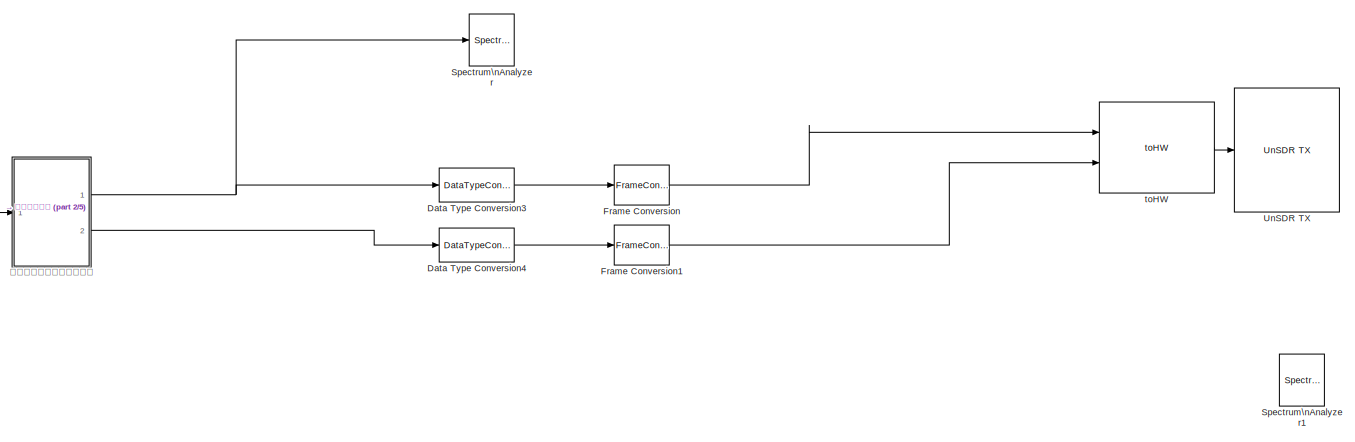
[diagram: root canvas - part 1/5, full width, top band]
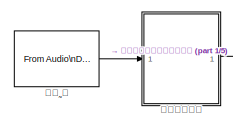
[diagram: root canvas - part 2/5, top left region]
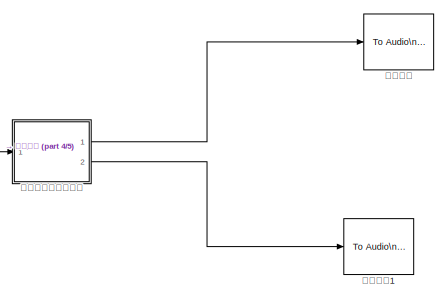
[diagram: root canvas - part 3/5, middle right region]
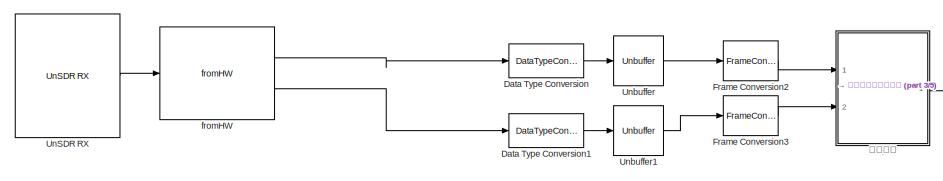
[diagram: root canvas - part 4/5, middle left region]
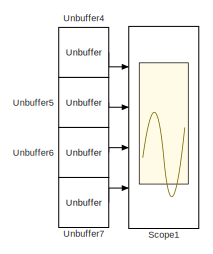
[diagram: root canvas - part 5/5, bottom left region]
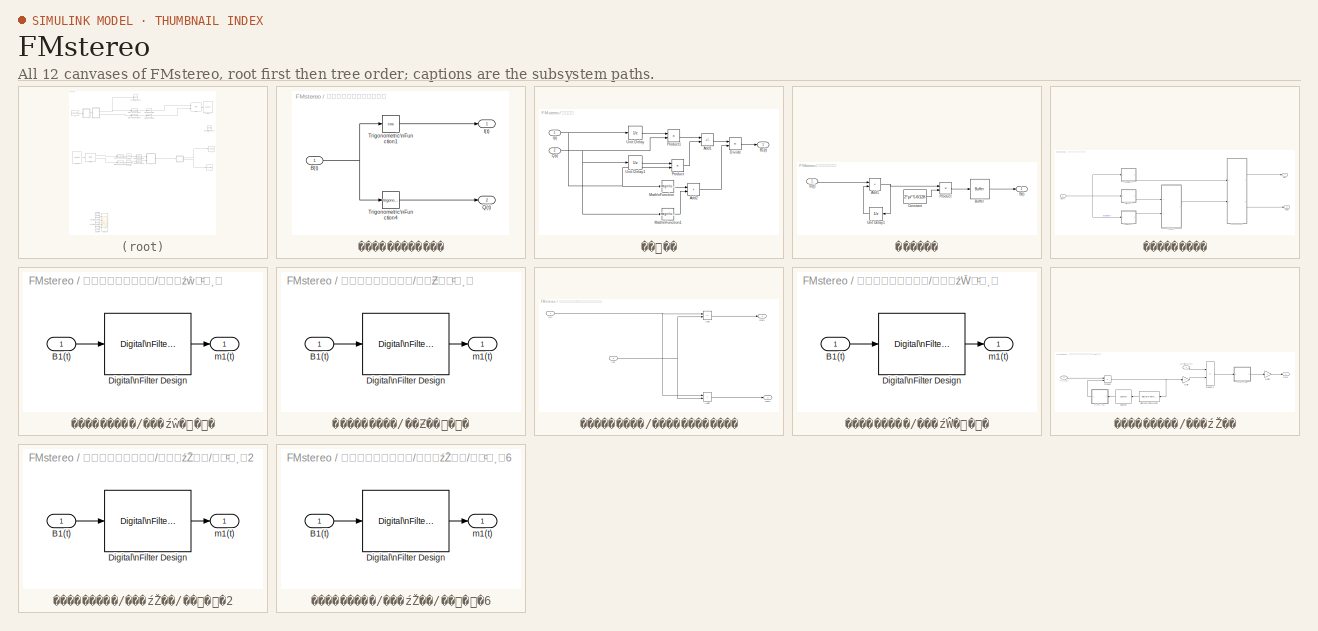
[diagram: thumbnail index - all 12 canvases of the model, root first then tree order]
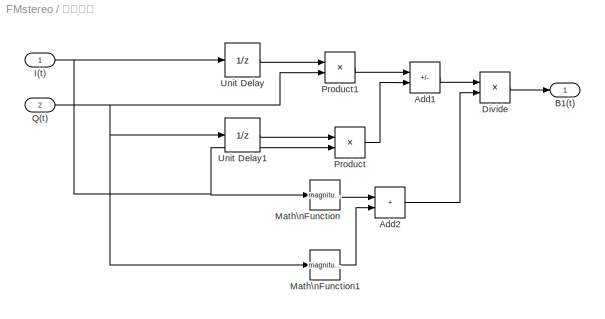
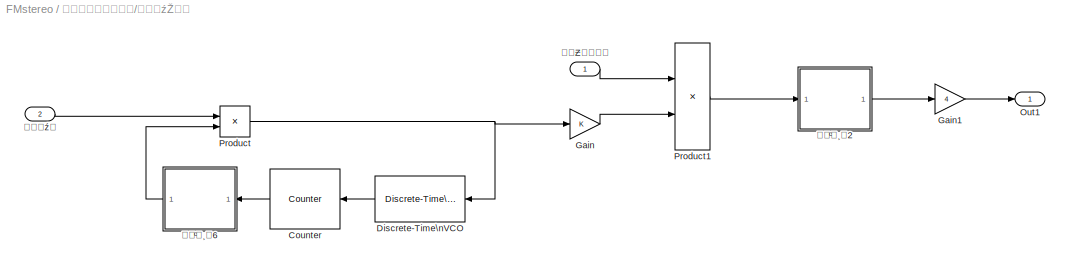
MODEL FMstereo
KIND model
CONFIG PreLoadFcn = setenv('MW_MINGW64_LOC','C:\\TDM-GCC-64')
CONFIG StartFcn = tic
CONFIG StopFcn = toc;
BLOCK [DataTypeConversion] Data Type Conversion
  OutDataTypeStr = double
  RndMeth = Floor
  SID = 1983
  SaturateOnIntegerOverflow = off
BLOCK [DataTypeConversion] Data Type Conversion1
  OutDataTypeStr = double
  RndMeth = Floor
  SID = 2200
  SaturateOnIntegerOverflow = off
BLOCK [DataTypeConversion] Data Type Conversion3
  Commented = on
  OutDataTypeStr = fixdt(1,12,11)
  RndMeth = Floor
  SID = 1974
  SaturateOnIntegerOverflow = off
BLOCK [DataTypeConversion] Data Type Conversion4
  Commented = on
  OutDataTypeStr = fixdt(1,12,11)
  RndMeth = Floor
  SID = 1975
  SaturateOnIntegerOverflow = off
BLOCK [FrameConversion] Frame Conversion
  Commented = on
  OutFrame = Sample-based
  Ports = [1, 1]
  SID = 1976
BLOCK [FrameConversion] Frame Conversion1
  Commented = on
  OutFrame = Sample-based
  Ports = [1, 1]
  SID = 1977
BLOCK [FrameConversion] Frame Conversion2
  OutFrame = Sample-based
  Ports = [1, 1]
  SID = 2202
BLOCK [FrameConversion] Frame Conversion3
  OutFrame = Sample-based
  Ports = [1, 1]
  SID = 2203
BLOCK [Scope] Scope1
  Commented = on
  Floating = off
  NumInputPorts = 4
  Ports = [4]
  SID = 1951
  ScopeSpecificationString = Simulink.scopes.TimeScopeBlockCfg('CurrentConfiguration', extmgr.ConfigurationSet(extmgr.Configuration('Core','General UI',true,'DisplayFullSourceName',true),extmgr.Configuration('Core','Source UI',true),extmgr.Configuration('Sources','WiredSimulink',true,'DataLoggingVariableName','ScopeData1'),extmgr.Configuration('Visuals','Time Domain',true,'SerializedDisplays',{struct('MinYLimReal','-18.375','...<+3487ch>
BLOCK [SpectrumAnalyzer] Spectrum\nAnalyzer
  Commented = on
  Ports = [1]
  SID = 1932
  ScopeSpecificationString = spbscopes.SpectrumAnalyzerBlockCfg('CurrentConfiguration', extmgr.ConfigurationSet(extmgr.Configuration('Core','General UI',true),extmgr.Configuration('Core','Source UI',true),extmgr.Configuration('Sources','WiredSimulink',true),extmgr.Configuration('Visuals','Spectrum',true,'AxesProperties',struct('Color',{[0 0 0],[0 0 0]},'XColor',{[0.686274509803922 0.686274509803922 0.686274509803922],[0.68627...<+1672ch>
BLOCK [SpectrumAnalyzer] Spectrum\nAnalyzer1
  Ports = [1]
  SID = 2211
  ScopeSpecificationString = spbscopes.SpectrumAnalyzerBlockCfg('CurrentConfiguration', extmgr.ConfigurationSet(extmgr.Configuration('Core','General UI',true),extmgr.Configuration('Core','Source UI',true),extmgr.Configuration('Sources','WiredSimulink',true),extmgr.Configuration('Visuals','Spectrum',true,'AxesProperties',struct('Color',{[0 0 0],[0 0 0]},'XColor',{[0.686274509803922 0.686274509803922 0.686274509803922],[0.68627...<+3563ch>
BLOCK [Reference] UnSDR RX  REF=UN_HIL_Lib/UnSDR RX
  AllowZeroVariantControls = off
  AutoFrameSizeCalculation = off
  GeneratePreprocessorConditionals = off
  Latency = 0
  Ports = [0, 1]
  PropagateVariantConditions = off
  RTWMemSecDataConstants = Inherit from model
  RTWMemSecDataInternal = Inherit from model
  RTWMemSecDataParameters = Inherit from model
  RTWMemSecFuncExecute = Inherit from model
  RTWMemSecFuncInitTerm = Inherit from model
  SID = 2208
  ShowPortLabels = FromPortIcon
  SourceBlock = UN_HIL_Lib/UnSDR RX
  SourceProductName = HIL Blockset
  SystemSampleTime = -1
BLOCK [Reference] UnSDR TX  REF=UN_HIL_Lib/UnSDR TX
  AllowZeroVariantControls = off
  AutoFrameSizeCalculation = off
  Commented = on
  GeneratePreprocessorConditionals = off
  Latency = 0
  Ports = [1]
  PropagateVariantConditions = off
  RTWMemSecDataConstants = Inherit from model
  RTWMemSecDataInternal = Inherit from model
  RTWMemSecDataParameters = Inherit from model
  RTWMemSecFuncExecute = Inherit from model
  RTWMemSecFuncInitTerm = Inherit from model
  SID = 2209
  ShowPortLabels = FromPortIcon
  SourceBlock = UN_HIL_Lib/UnSDR TX
  SourceProductName = HIL Blockset
  SystemSampleTime = -1
BLOCK [Unbuffer] Unbuffer
  Ports = [1, 1]
  SID = 2204
BLOCK [Unbuffer] Unbuffer1
  Ports = [1, 1]
  SID = 2205
BLOCK [Unbuffer] Unbuffer4
  Commented = on
  Ports = [1, 1]
  SID = 1952
BLOCK [Unbuffer] Unbuffer5
  Commented = on
  Ports = [1, 1]
  SID = 1953
BLOCK [Unbuffer] Unbuffer6
  Commented = on
  Ports = [1, 1]
  SID = 1954
BLOCK [Unbuffer] Unbuffer7
  Commented = on
  Ports = [1, 1]
  SID = 1955
BLOCK [Reference] fromHW  REF=UN_HIL_Lib/fromHW
  Ports = [1, 2]
  RTWMemSecDataConstants = Inherit from model
  RTWMemSecDataInternal = Inherit from model
  RTWMemSecDataParameters = Inherit from model
  RTWMemSecFuncExecute = Inherit from model
  RTWMemSecFuncInitTerm = Inherit from model
  SID = 2207
  SourceBlock = UN_HIL_Lib/fromHW
  SourceProductName = HIL Blockset
  sp = 1/128e3
BLOCK [Reference] toHW  REF=UN_HIL_Lib/toHW
  AllowZeroVariantControls = off
  AutoFrameSizeCalculation = off
  Commented = on
  GeneratePreprocessorConditionals = off
  Latency = 0
  Ports = [2, 1]
  PropagateVariantConditions = off
  RTWMemSecDataConstants = Inherit from model
  RTWMemSecDataInternal = Inherit from model
  RTWMemSecDataParameters = Inherit from model
  RTWMemSecFuncExecute = Inherit from model
  RTWMemSecFuncInitTerm = Inherit from model
  SID = 2206
  ShowPortLabels = FromPortIcon
  SourceBlock = UN_HIL_Lib/toHW
  SourceProductName = HIL Blockset
  SystemSampleTime = -1
BLOCK [SubSystem] 差分解调
  Ports = [2, 1]
  RequestExecContextInheritance = off
  SID = 2185
BLOCK [Sum] 差分解调/Add1
  IconShape = rectangular
  Inputs = -+
  Ports = [2, 1]
  SID = 2188
BLOCK [Sum] 差分解调/Add2
  IconShape = rectangular
  Ports = [2, 1]
  SID = 2189
BLOCK [Outport] 差分解调/B1(t)
  SID = 2197
  VectorParamsAs1DForOutWhenUnconnected = off
BLOCK [Product] 差分解调/Divide
  Inputs = */
  Ports = [2, 1]
  SID = 2190
BLOCK [Inport] 差分解调/I(t)
  SID = 2186
BLOCK [Math] 差分解调/Math\nFunction
  Operator = magnitude^2
  Ports = [1, 1]
  SID = 2191
  SignedPower = on
BLOCK [Math] 差分解调/Math\nFunction1
  Operator = magnitude^2
  Ports = [1, 1]
  SID = 2192
  SignedPower = on
BLOCK [Product] 差分解调/Product
  Ports = [2, 1]
  RndMeth = Zero
  SID = 2193
BLOCK [Product] 差分解调/Product1
  Ports = [2, 1]
  RndMeth = Zero
  SID = 2194
BLOCK [Inport] 差分解调/Q(t)
  Port = 2
  SID = 2187
BLOCK [UnitDelay] 差分解调/Unit Delay
  HasFrameUpgradeWarning = on
  SID = 2195
  SampleTime = -1
BLOCK [UnitDelay] 差分解调/Unit Delay1
  HasFrameUpgradeWarning = on
  SID = 2196
  SampleTime = -1
BLOCK [SubSystem] 产生正交分量
  Commented = on
  Ports = [1, 2]
  RequestExecContextInheritance = off
  SID = 2165
BLOCK [Inport] 产生正交分量/B(t)
  SID = 2166
BLOCK [Outport] 产生正交分量/I(t)
  SID = 2169
  VectorParamsAs1DForOutWhenUnconnected = off
BLOCK [Outport] 产生正交分量/Q(t)
  Port = 2
  SID = 2170
  VectorParamsAs1DForOutWhenUnconnected = off
BLOCK [Trigonometry] 产生正交分量/Trigonometric\nFunction1
  NumberOfIterations = 16
  Operator = cos
  Ports = [1, 1]
  SID = 2167
BLOCK [Trigonometry] 产生正交分量/Trigonometric\nFunction4
  NumberOfIterations = 16
  Ports = [1, 1]
  SID = 2168
BLOCK [Reference] 耳机  REF=dspobslib/To Audio\nDevice
  MultiThreadCoSim = auto
  Ports = [1]
  SID = 2198
  SourceBlock = dspobslib/To Audio\nDevice
  SourceProductBaseCode = DS
  SourceType = To Audio Device
  autoBufferSize = on
  bufferSize = 4096
  defaultOutputChannelMapping = on
  deviceDatatype = Determine from input data type
  deviceName = Default
  inheritSampleRate = on
  outputChannelMapping = 1:2
  outputNumUnderrunSamples = off
  queueDuration = 2
  sampleRate = 44100
BLOCK [Reference] 耳机1  REF=dspobslib/To Audio\nDevice
  MultiThreadCoSim = auto
  Ports = [1]
  SID = 2229
  SourceBlock = dspobslib/To Audio\nDevice
  SourceProductBaseCode = DS
  SourceType = To Audio Device
  autoBufferSize = on
  bufferSize = 4096
  defaultOutputChannelMapping = on
  deviceDatatype = Determine from input data type
  deviceName = Default
  inheritSampleRate = on
  outputChannelMapping = 1:2
  outputNumUnderrunSamples = off
  queueDuration = 2
  sampleRate = 44100
BLOCK [SubSystem] 积分器
  Commented = on
  Ports = [1, 1]
  RequestExecContextInheritance = off
  SID = 2171
BLOCK [Sum] 积分器/Add1
  IconShape = rectangular
  OutDataTypeStr = Inherit: Same as first input
  Ports = [2, 1]
  SID = 2173
BLOCK [Outport] 积分器/B(t)
  SID = 2179
  VectorParamsAs1DForOutWhenUnconnected = off
BLOCK [Buffer] 积分器/Buffer
  N = 4096
  SID = 2174
BLOCK [Constant] 积分器/Constant
  SID = 2175
  SampleTime = -1
  Value = 2*pi*5.6/128
  VectorParams1D = off
BLOCK [Product] 积分器/Product
  OutDataTypeStr = Inherit: Same as first input
  Ports = [2, 1]
  RndMeth = Zero
  SID = 2176
BLOCK [UnitDelay] 积分器/Unit Delay1
  HasFrameUpgradeWarning = on
  SID = 2178
  SampleTime = -1
BLOCK [Inport] 积分器/m(t)
  SID = 2172
BLOCK [SubSystem] 立体声解调
  Ports = [1, 2]
  RequestExecContextInheritance = off
  SID = 2231
BLOCK [Inport] 立体声解调/B1(t)
  SID = 2232
BLOCK [Outport] 立体声解调/left
  SID = 2233
BLOCK [Outport] 立体声解调/right
  Port = 2
  SID = 2234
BLOCK [SubSystem] 立体声解调/差信号带通滤波
  Ports = [1, 1]
  RequestExecContextInheritance = off
  SID = 2181
BLOCK [Inport] 立体声解调/差信号带通滤波/B1(t)
  SID = 2182
BLOCK [Reference] 立体声解调/差信号带通滤波/Digital\nFilter Design  REF=dsparch4/Digital\nFilter Design
  Ports = [1, 1]
  RTWMemSecDataConstants = Inherit from model
  RTWMemSecDataInternal = Inherit from model
  RTWMemSecDataParameters = Inherit from model
  RTWMemSecFuncExecute = Inherit from model
  RTWMemSecFuncInitTerm = Inherit from model
  SID = 2210
  SourceBlock = dsparch4/Digital\nFilter Design
  SourceProductBaseCode = DS
  SourceType = Digital Filter Design
  UserData = DataTag2
  UserDataPersistent = on
  mwdsp_browser_bugfix_var = off
BLOCK [Outport] 立体声解调/差信号带通滤波/m1(t)
  SID = 2184
  VectorParamsAs1DForOutWhenUnconnected = off
BLOCK [SubSystem] 立体声解调/差信号解调
  Ports = [2, 1]
  RequestExecContextInheritance = off
  SID = 2250
BLOCK [Reference] 立体声解调/差信号解调/Counter  REF=dspswit3/Counter
  CntDtype = double
  CountEvent = Rising edge
  CounterSize = 8 bits
  Direction = Up
  HitDtype = Logical
  HitValue = 32
  InitialCount = 0
  MaxCount = 255
  MultiThreadCoSim = auto
  NameLocation = top
  Output = Count
  Ports = [1, 1]
  ResetInput = off
  SID = 2240
  SamplesPerFrame = 1
  SourceBlock = dspswit3/Counter
  SourceProductBaseCode = DS
  SourceType = Counter
  Ts = 1
BLOCK [Reference] 立体声解调/差信号解调/Discrete-Time\nVCO  REF=commsynccomp2/Discrete-Time\nVCO
  Ac = 1
  Fc = 10
  Kc = 1
  NameLocation = top
  Ph = 0
  Ports = [1, 1]
  RTWMemSecDataConstants = Inherit from model
  RTWMemSecDataInternal = Inherit from model
  RTWMemSecDataParameters = Inherit from model
  RTWMemSecFuncExecute = Inherit from model
  RTWMemSecFuncInitTerm = Inherit from model
  SID = 2241
  SourceBlock = commsynccomp2/Discrete-Time\nVCO
  SourceProductBaseCode = CM
  SourceType = Discrete-Time VCO
  ts = 0.01
BLOCK [Gain] 立体声解调/差信号解调/Gain
  SID = 2243
BLOCK [Gain] 立体声解调/差信号解调/Gain1
  Gain = 4
  SID = 2249
BLOCK [Outport] 立体声解调/差信号解调/Out1
  SID = 2253
BLOCK [Product] 立体声解调/差信号解调/Product
  Ports = [2, 1]
  SID = 2235
BLOCK [Product] 立体声解调/差信号解调/Product1
  Ports = [2, 1]
  SID = 2244
BLOCK [Inport] 立体声解调/差信号解调/²îÐÅºÅ
  Port = 2
  SID = 2252
BLOCK [Inport] 立体声解调/差信号解调/导频控制
  SID = 2251
BLOCK [SubSystem] 立体声解调/差信号解调/低通滤波2
  Ports = [1, 1]
  RequestExecContextInheritance = off
  SID = 2245
BLOCK [Inport] 立体声解调/差信号解调/低通滤波2/B1(t)
  SID = 2246
BLOCK [Reference] 立体声解调/差信号解调/低通滤波2/Digital\nFilter Design  REF=dsparch4/Digital\nFilter Design
  Ports = [1, 1]
  RTWMemSecDataConstants = Inherit from model
  RTWMemSecDataInternal = Inherit from model
  RTWMemSecDataParameters = Inherit from model
  RTWMemSecFuncExecute = Inherit from model
  RTWMemSecFuncInitTerm = Inherit from model
  SID = 2247
  SourceBlock = dsparch4/Digital\nFilter Design
  SourceProductBaseCode = DS
  SourceType = Digital Filter Design
  UserData = DataTag3
  UserDataPersistent = on
  mwdsp_browser_bugfix_var = off
BLOCK [Outport] 立体声解调/差信号解调/低通滤波2/m1(t)
  SID = 2248
  VectorParamsAs1DForOutWhenUnconnected = off
BLOCK [SubSystem] 立体声解调/差信号解调/低通滤波6
  NameLocation = top
  Ports = [1, 1]
  RequestExecContextInheritance = off
  SID = 2236
BLOCK [Inport] 立体声解调/差信号解调/低通滤波6/B1(t)
  SID = 2237
BLOCK [Reference] 立体声解调/差信号解调/低通滤波6/Digital\nFilter Design  REF=dsparch4/Digital\nFilter Design
  Ports = [1, 1]
  RTWMemSecDataConstants = Inherit from model
  RTWMemSecDataInternal = Inherit from model
  RTWMemSecDataParameters = Inherit from model
  RTWMemSecFuncExecute = Inherit from model
  RTWMemSecFuncInitTerm = Inherit from model
  SID = 2238
  SourceBlock = dsparch4/Digital\nFilter Design
  SourceProductBaseCode = DS
  SourceType = Digital Filter Design
  UserData = DataTag4
  UserDataPersistent = on
  mwdsp_browser_bugfix_var = off
BLOCK [Outport] 立体声解调/差信号解调/低通滤波6/m1(t)
  SID = 2239
  VectorParamsAs1DForOutWhenUnconnected = off
BLOCK [SubSystem] 立体声解调/导频带通滤波
  Ports = [1, 1]
  RequestExecContextInheritance = off
  SID = 2216
BLOCK [Inport] 立体声解调/导频带通滤波/B1(t)
  SID = 2217
BLOCK [Reference] 立体声解调/导频带通滤波/Digital\nFilter Design  REF=dsparch4/Digital\nFilter Design
  Ports = [1, 1]
  RTWMemSecDataConstants = Inherit from model
  RTWMemSecDataInternal = Inherit from model
  RTWMemSecDataParameters = Inherit from model
  RTWMemSecFuncExecute = Inherit from model
  RTWMemSecFuncInitTerm = Inherit from model
  SID = 2218
  SourceBlock = dsparch4/Digital\nFilter Design
  SourceProductBaseCode = DS
  SourceType = Digital Filter Design
  UserData = DataTag1
  UserDataPersistent = on
  mwdsp_browser_bugfix_var = off
BLOCK [Outport] 立体声解调/导频带通滤波/m1(t)
  SID = 2219
  VectorParamsAs1DForOutWhenUnconnected = off
BLOCK [SubSystem] 立体声解调/和信号低通滤波
  Ports = [1, 1]
  RequestExecContextInheritance = off
  SID = 2212
BLOCK [Inport] 立体声解调/和信号低通滤波/B1(t)
  SID = 2213
BLOCK [Reference] 立体声解调/和信号低通滤波/Digital\nFilter Design  REF=dsparch4/Digital\nFilter Design
  Ports = [1, 1]
  RTWMemSecDataConstants = Inherit from model
  RTWMemSecDataInternal = Inherit from model
  RTWMemSecDataParameters = Inherit from model
  RTWMemSecFuncExecute = Inherit from model
  RTWMemSecFuncInitTerm = Inherit from model
  SID = 2214
  SourceBlock = dsparch4/Digital\nFilter Design
  SourceProductBaseCode = DS
  SourceType = Digital Filter Design
  UserData = DataTag0
  UserDataPersistent = on
  mwdsp_browser_bugfix_var = off
BLOCK [Outport] 立体声解调/和信号低通滤波/m1(t)
  SID = 2215
  VectorParamsAs1DForOutWhenUnconnected = off
BLOCK [SubSystem] 立体声解调/左右声道分离
  Ports = [2, 2]
  RequestExecContextInheritance = off
  SID = 2254
BLOCK [Sum] 立体声解调/左右声道分离/Add
  IconShape = rectangular
  Inputs = +-
  Ports = [2, 1]
  SID = 2228
BLOCK [Sum] 立体声解调/左右声道分离/Add1
  IconShape = rectangular
  Ports = [2, 1]
  SID = 2230
BLOCK [Inport] 立体声解调/左右声道分离/In1
  SID = 2255
BLOCK [Inport] 立体声解调/左右声道分离/In2
  Port = 2
  SID = 2256
BLOCK [Outport] 立体声解调/左右声道分离/Out1
  SID = 2257
BLOCK [Outport] 立体声解调/左右声道分离/Out2
  Port = 2
  SID = 2258
BLOCK [Reference] 麦克风  REF=dspobslib/From Audio\nDevice
  Commented = on
  MultiThreadCoSim = auto
  OutputFrames = on
  Ports = [0, 1]
  SID = 2180
  SourceBlock = dspobslib/From Audio\nDevice
  SourceProductBaseCode = DS
  SourceType = From Audio Device
  autoBufferSize = on
  bufferSize = 4096
  defaultInputChannelMapping = on
  deviceDatatype = Determine from output data type
  deviceName = Default
  frameSize = 1
  inputChannelMapping = 1:2
  numChannels = 1
  outputDatatype = single
  outputNumOverrunSamples = off
  queueDuration = 1.0
  sampleRate = 128000
LINE Data Type Conversion1:1 -> Unbuffer1:1
LINE Data Type Conversion3:1 -> Frame Conversion:1
LINE Data Type Conversion4:1 -> Frame Conversion1:1
LINE Data Type Conversion:1 -> Unbuffer:1
LINE Frame Conversion1:1 -> toHW:2
LINE Frame Conversion2:1 -> 差分解调:1
LINE Frame Conversion3:1 -> 差分解调:2
LINE Frame Conversion:1 -> toHW:1
LINE UnSDR RX:1 -> fromHW:1
LINE Unbuffer1:1 -> Frame Conversion3:1
LINE Unbuffer4:1 -> Scope1:1
LINE Unbuffer5:1 -> Scope1:2
LINE Unbuffer6:1 -> Scope1:3
LINE Unbuffer7:1 -> Scope1:4
LINE Unbuffer:1 -> Frame Conversion2:1
LINE fromHW:1 -> Data Type Conversion:1
LINE fromHW:2 -> Data Type Conversion1:1
LINE toHW:1 -> UnSDR TX:1
LINE 差分解调/Add1:1 -> 差分解调/Divide:1
LINE 差分解调/Add2:1 -> 差分解调/Divide:2
LINE 差分解调/Divide:1 -> 差分解调/B1(t):1
NET 差分解调/I(t):1 -> 差分解调/Math\nFunction:1, 差分解调/Product:2, 差分解调/Unit Delay:1
LINE 差分解调/Math\nFunction1:1 -> 差分解调/Add2:2
LINE 差分解调/Math\nFunction:1 -> 差分解调/Add2:1
LINE 差分解调/Product1:1 -> 差分解调/Add1:1
LINE 差分解调/Product:1 -> 差分解调/Add1:2
NET 差分解调/Q(t):1 -> 差分解调/Math\nFunction1:1, 差分解调/Product1:2, 差分解调/Unit Delay1:1
LINE 差分解调/Unit Delay1:1 -> 差分解调/Product:1
LINE 差分解调/Unit Delay:1 -> 差分解调/Product1:1
LINE 差分解调:1 -> 立体声解调:1
NET 产生正交分量/B(t):1 -> 产生正交分量/Trigonometric\nFunction1:1, 产生正交分量/Trigonometric\nFunction4:1
LINE 产生正交分量/Trigonometric\nFunction1:1 -> 产生正交分量/I(t):1
LINE 产生正交分量/Trigonometric\nFunction4:1 -> 产生正交分量/Q(t):1
NET 产生正交分量:1 -> Data Type Conversion3:1, Spectrum\nAnalyzer:1
LINE 产生正交分量:2 -> Data Type Conversion4:1
NET 积分器/Add1:1 -> 积分器/Product:1, 积分器/Unit Delay1:1
LINE 积分器/Buffer:1 -> 积分器/B(t):1
LINE 积分器/Constant:1 -> 积分器/Product:2
LINE 积分器/Product:1 -> 积分器/Buffer:1
LINE 积分器/Unit Delay1:1 -> 积分器/Add1:2
LINE 积分器/m(t):1 -> 积分器/Add1:1
LINE 积分器:1 -> 产生正交分量:1
NET 立体声解调/B1(t):1 -> 立体声解调/差信号带通滤波:1, 立体声解调/导频带通滤波:1, 立体声解调/和信号低通滤波:1
LINE 立体声解调/差信号带通滤波/B1(t):1 -> 立体声解调/差信号带通滤波/Digital\nFilter Design:1
LINE 立体声解调/差信号带通滤波/Digital\nFilter Design:1 -> 立体声解调/差信号带通滤波/m1(t):1
LINE 立体声解调/差信号带通滤波:1 -> 立体声解调/差信号解调:2
LINE 立体声解调/差信号解调/Counter:1 -> 立体声解调/差信号解调/低通滤波6:1
LINE 立体声解调/差信号解调/Discrete-Time\nVCO:1 -> 立体声解调/差信号解调/Counter:1
LINE 立体声解调/差信号解调/Gain1:1 -> 立体声解调/差信号解调/Out1:1
LINE 立体声解调/差信号解调/Gain:1 -> 立体声解调/差信号解调/Product1:2
LINE 立体声解调/差信号解调/Product1:1 -> 立体声解调/差信号解调/低通滤波2:1
NET 立体声解调/差信号解调/Product:1 -> 立体声解调/差信号解调/Discrete-Time\nVCO:1, 立体声解调/差信号解调/Gain:1
LINE 立体声解调/差信号解调/²îÐÅºÅ:1 -> 立体声解调/差信号解调/Product:1
LINE 立体声解调/差信号解调/导频控制:1 -> 立体声解调/差信号解调/Product1:1
LINE 立体声解调/差信号解调/低通滤波2/B1(t):1 -> 立体声解调/差信号解调/低通滤波2/Digital\nFilter Design:1
LINE 立体声解调/差信号解调/低通滤波2/Digital\nFilter Design:1 -> 立体声解调/差信号解调/低通滤波2/m1(t):1
LINE 立体声解调/差信号解调/低通滤波2:1 -> 立体声解调/差信号解调/Gain1:1
LINE 立体声解调/差信号解调/低通滤波6/B1(t):1 -> 立体声解调/差信号解调/低通滤波6/Digital\nFilter Design:1
LINE 立体声解调/差信号解调/低通滤波6/Digital\nFilter Design:1 -> 立体声解调/差信号解调/低通滤波6/m1(t):1
LINE 立体声解调/差信号解调/低通滤波6:1 -> 立体声解调/差信号解调/Product:2
LINE 立体声解调/差信号解调:1 -> 立体声解调/左右声道分离:2
LINE 立体声解调/导频带通滤波/B1(t):1 -> 立体声解调/导频带通滤波/Digital\nFilter Design:1
LINE 立体声解调/导频带通滤波/Digital\nFilter Design:1 -> 立体声解调/导频带通滤波/m1(t):1
LINE 立体声解调/导频带通滤波:1 -> 立体声解调/差信号解调:1
LINE 立体声解调/和信号低通滤波/B1(t):1 -> 立体声解调/和信号低通滤波/Digital\nFilter Design:1
LINE 立体声解调/和信号低通滤波/Digital\nFilter Design:1 -> 立体声解调/和信号低通滤波/m1(t):1
LINE 立体声解调/和信号低通滤波:1 -> 立体声解调/左右声道分离:1
LINE 立体声解调/左右声道分离/Add1:1 -> 立体声解调/左右声道分离/Out2:1
LINE 立体声解调/左右声道分离/Add:1 -> 立体声解调/左右声道分离/Out1:1
NET 立体声解调/左右声道分离/In1:1 -> 立体声解调/左右声道分离/Add1:1, 立体声解调/左右声道分离/Add:1
NET 立体声解调/左右声道分离/In2:1 -> 立体声解调/左右声道分离/Add1:2, 立体声解调/左右声道分离/Add:2
LINE 立体声解调/左右声道分离:1 -> 立体声解调/left:1
LINE 立体声解调/左右声道分离:2 -> 立体声解调/right:1
LINE 立体声解调:1 -> 耳机:1
LINE 立体声解调:2 -> 耳机1:1
LINE 麦克风:1 -> 积分器:1
note: NET lines group one-source signal fan-out (src -> all destinations, sorted); 1:1 wires keep LINE
